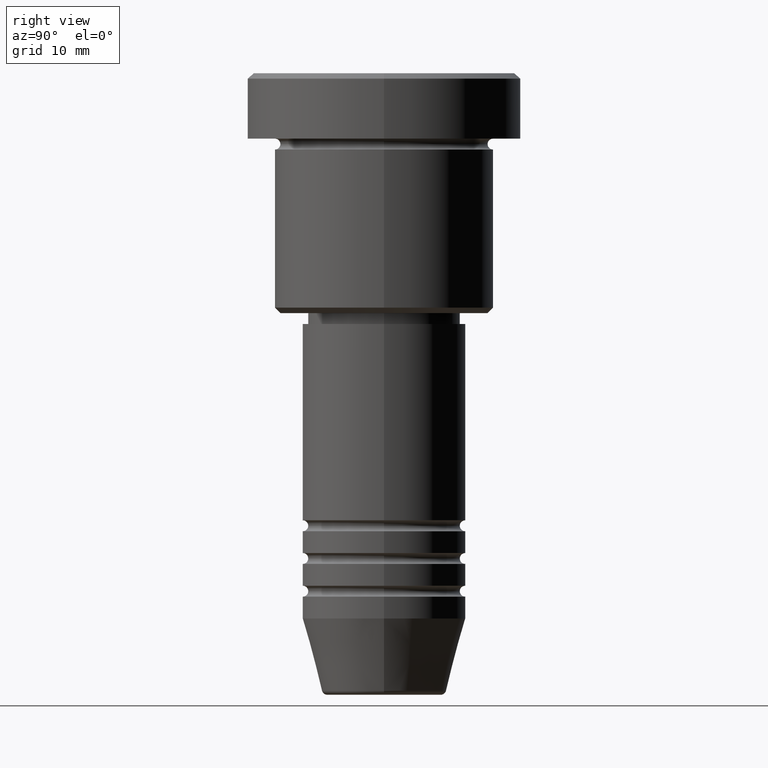
[diagram: clean part render]
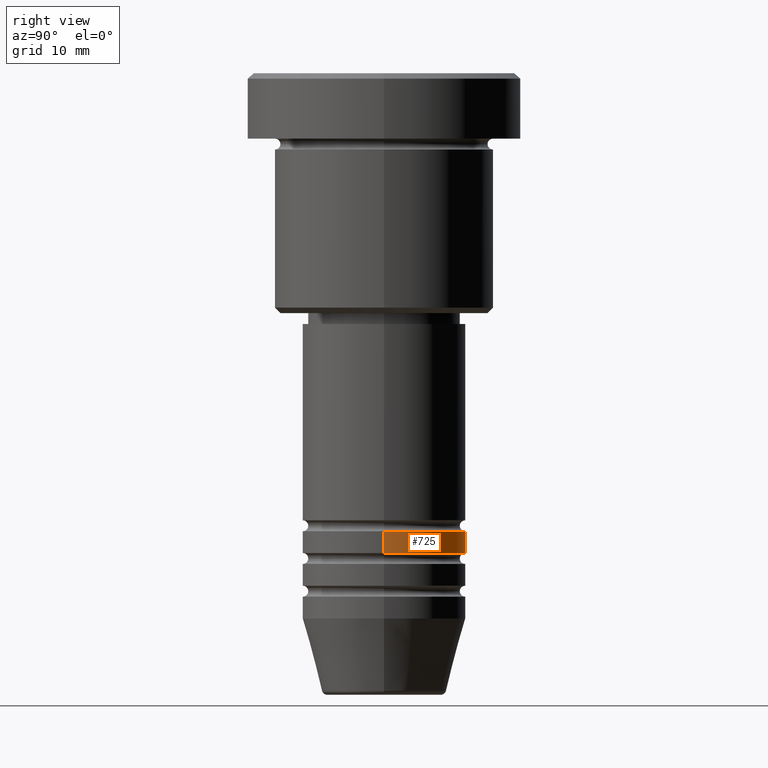
[diagram: same view with one face highlighted and labeled with its STEP entity id]
A machine part, right view. The second image highlights one B-rep face of the part: STEP entity #725.
In plain terms, the highlighted cylindrical surface (partial cylindrical patch) has radius 7.5 mm, axis along (-0, -0, 1).
Its self-contained STEP definition (entity closure, byte-faithful):
#14 = EDGE_CURVE ( 'NONE', #689, #453, #890, .T. ) ;
#22 = CIRCLE ( 'NONE', #218, 7.500000000000000000 ) ;
#218 = AXIS2_PLACEMENT_3D ( 'NONE', #634, #430, #889 ) ;
#331 = CARTESIAN_POINT ( 'NONE',  ( -7.500000000000000000, 9.184850993605147944E-16, -41.99999999999997868 ) ) ;
#351 = CARTESIAN_POINT ( 'NONE',  ( 0.000000000000000000, 0.000000000000000000, -41.99999999999997868 ) ) ;
#365 = CARTESIAN_POINT ( 'NONE',  ( -7.500000000000000000, 9.184850993605147944E-16, -43.99999999999998579 ) ) ;
#383 = VECTOR ( 'NONE', #1095, 1000.000000000000000 ) ;
#430 = DIRECTION ( 'NONE',  ( -0.000000000000000000, -0.000000000000000000, 1.000000000000000000 ) ) ;
#434 = EDGE_CURVE ( 'NONE', #1061, #689, #22, .T. ) ;
#453 = VERTEX_POINT ( 'NONE', #331 ) ;
#455 = CARTESIAN_POINT ( 'NONE',  ( 7.500000000000000000, 0.000000000000000000, -43.99999999999998579 ) ) ;
#474 = EDGE_CURVE ( 'NONE', #527, #453, #856, .T. ) ;
#515 = DIRECTION ( 'NONE',  ( -0.000000000000000000, -0.000000000000000000, 1.000000000000000000 ) ) ;
#521 = AXIS2_PLACEMENT_3D ( 'NONE', #351, #618, #696 ) ;
#523 = AXIS2_PLACEMENT_3D ( 'NONE', #697, #515, #604 ) ;
#527 = VERTEX_POINT ( 'NONE', #1077 ) ;
#604 = DIRECTION ( 'NONE',  ( 1.000000000000000000, 0.000000000000000000, 0.000000000000000000 ) ) ;
#618 = DIRECTION ( 'NONE',  ( -0.000000000000000000, -0.000000000000000000, 1.000000000000000000 ) ) ;
#630 = ORIENTED_EDGE ( 'NONE', *, *, #474, .F. ) ;
#634 = CARTESIAN_POINT ( 'NONE',  ( 0.000000000000000000, 0.000000000000000000, -43.99999999999998579 ) ) ;
#684 = EDGE_CURVE ( 'NONE', #1061, #527, #908, .T. ) ;
#689 = VERTEX_POINT ( 'NONE', #365 ) ;
#696 = DIRECTION ( 'NONE',  ( 1.000000000000000000, 0.000000000000000000, 0.000000000000000000 ) ) ;
#697 = CARTESIAN_POINT ( 'NONE',  ( 0.000000000000000000, 0.000000000000000000, 0.000000000000000000 ) ) ;
#719 = CARTESIAN_POINT ( 'NONE',  ( -7.500000000000000000, 9.184850993605147944E-16, 0.000000000000000000 ) ) ;
#725 = ADVANCED_FACE ( 'NONE', ( #886 ), #1060, .T. ) ;
#734 = ORIENTED_EDGE ( 'NONE', *, *, #684, .F. ) ;
#773 = VECTOR ( 'NONE', #1006, 1000.000000000000000 ) ;
#817 = CARTESIAN_POINT ( 'NONE',  ( 7.500000000000000000, 0.000000000000000000, 0.000000000000000000 ) ) ;
#856 = CIRCLE ( 'NONE', #521, 7.500000000000000000 ) ;
#884 = ORIENTED_EDGE ( 'NONE', *, *, #14, .T. ) ;
#886 = FACE_OUTER_BOUND ( 'NONE', #968, .T. ) ;
#889 = DIRECTION ( 'NONE',  ( 1.000000000000000000, 0.000000000000000000, 0.000000000000000000 ) ) ;
#890 = LINE ( 'NONE', #719, #773 ) ;
#908 = LINE ( 'NONE', #817, #383 ) ;
#968 = EDGE_LOOP ( 'NONE', ( #1036, #884, #630, #734 ) ) ;
#1006 = DIRECTION ( 'NONE',  ( -0.000000000000000000, -0.000000000000000000, 1.000000000000000000 ) ) ;
#1036 = ORIENTED_EDGE ( 'NONE', *, *, #434, .T. ) ;
#1060 = CYLINDRICAL_SURFACE ( 'NONE', #523, 7.500000000000000000 ) ;
#1061 = VERTEX_POINT ( 'NONE', #455 ) ;
#1077 = CARTESIAN_POINT ( 'NONE',  ( 7.500000000000000000, 0.000000000000000000, -41.99999999999997868 ) ) ;
#1095 = DIRECTION ( 'NONE',  ( -0.000000000000000000, -0.000000000000000000, 1.000000000000000000 ) ) ;